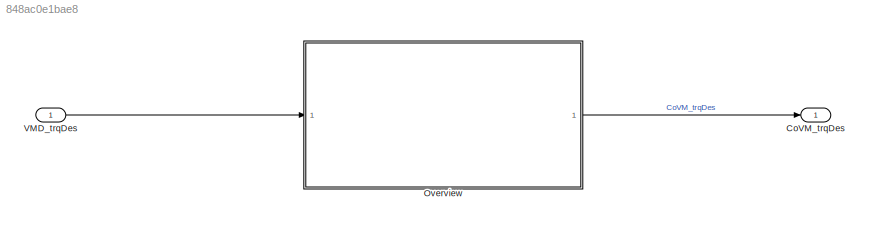
MODEL slx_848ac0e1bae8
KIND model
CONFIG AbsTol = auto
CONFIG EnableMultiTasking = off
CONFIG FixedStep = 0.001
CONFIG MaxStep = auto
CONFIG MinStep = auto
CONFIG RelTol = 1e-3
CONFIG SampleTimeConstraint = Unconstrained
CONFIG Solver = FixedStepDiscrete
CONFIG SolverName = FixedStepDiscrete
CONFIG StartTime = 0.0
CONFIG StopTime = Inf
BLOCK [Outport] CoVM_trqDes
  IconDisplay = Port number
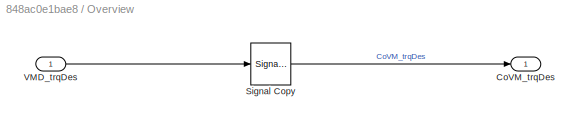
BLOCK [SubSystem] Overview
  Ports = [1, 1]
  RequestExecContextInheritance = off
BLOCK [Outport] Overview/CoVM_trqDes
  IconDisplay = Port number
  Tag = Nm
BLOCK [SignalConversion] Overview/Signal Copy
  OverrideOpt = off
BLOCK [Inport] Overview/VMD_trqDes
  IconDisplay = Port number
  Tag = Nm
BLOCK [Inport] VMD_trqDes
  Description = propulsion  torque after driving assistance coordination
  IconDisplay = Port number
  OutDataTypeStr = Torq
  OutMax = 3000
  OutMin = -3000
  PortDimensions = [1 1]
  Unit = Nm
LINE Overview/Signal Copy:1 -> Overview/CoVM_trqDes:1
LINE Overview/VMD_trqDes:1 -> Overview/Signal Copy:1
LINE Overview:1 -> CoVM_trqDes:1
LINE VMD_trqDes:1 -> Overview:1
